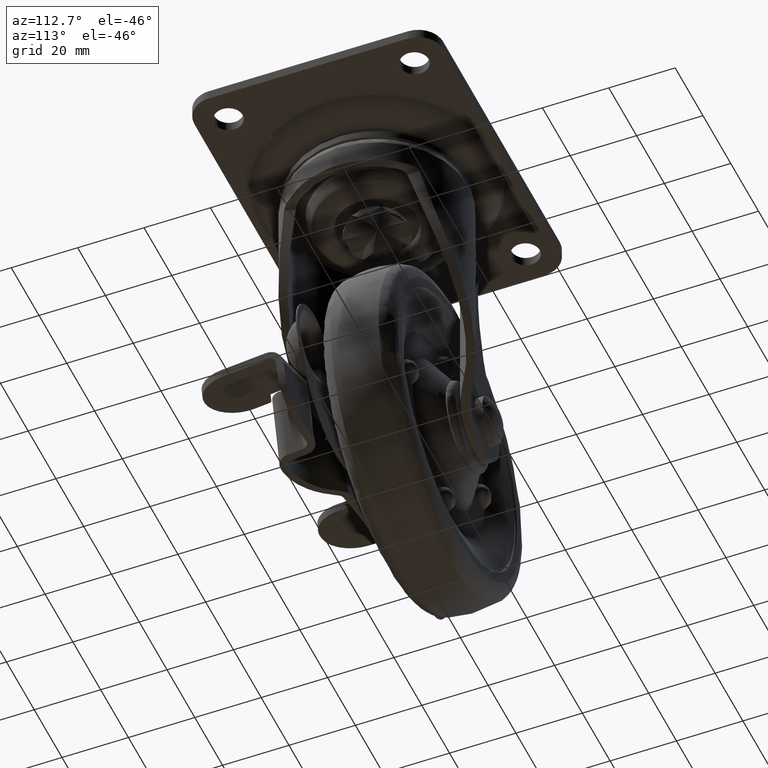
[diagram: clean part render]
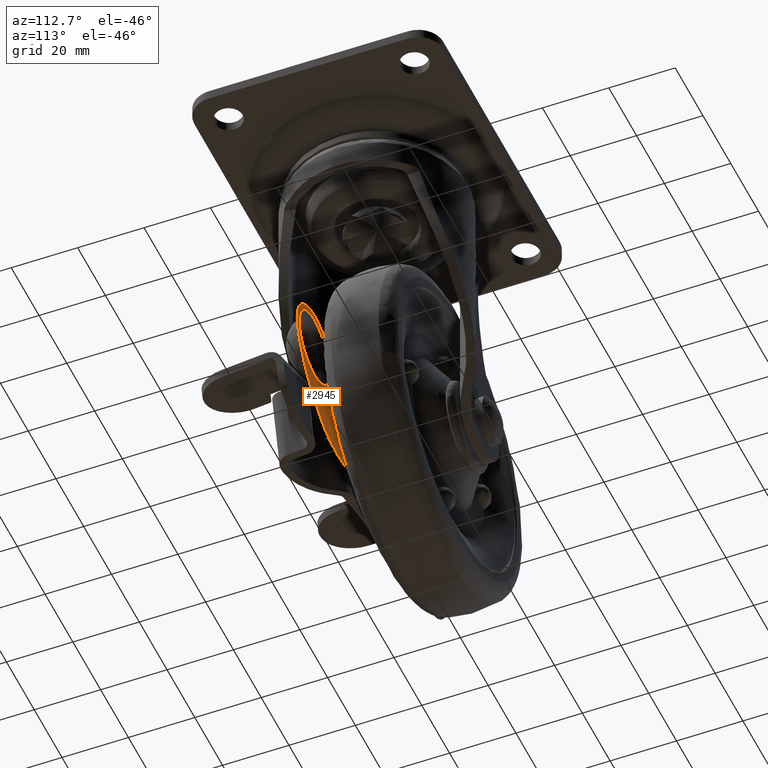
[diagram: same view with one face highlighted and labeled with its STEP entity id]
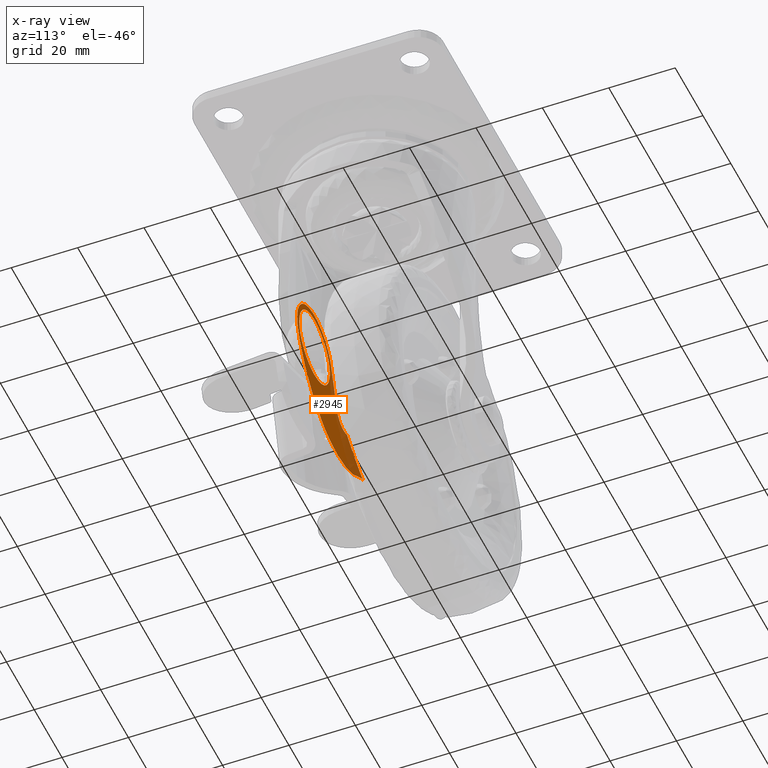
[diagram: x-ray of the same camera — body ghosted, the highlighted face saturated]
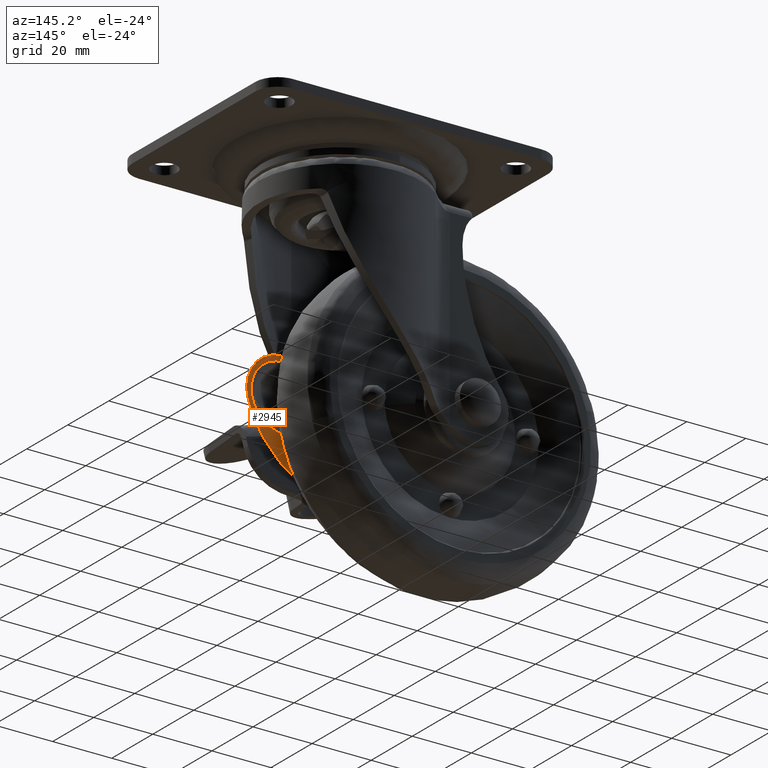
[diagram: same view with one face highlighted and labeled with its STEP entity id]
A machine part, auxiliary view. The second image highlights one B-rep face of the part: STEP entity #2945.
The next image is the same camera in x-ray: the body ghosted, the highlighted face saturated — about 28% of this face is hidden behind the body in this view.
A second angle (auxiliary view) of the same face is appended — the face is thin or edge-on in the first view.
In plain terms, the highlighted face is a freeform B-spline surface patch.
Its self-contained STEP definition (entity closure, byte-faithful):
#1144=CARTESIAN_POINT('',(-1.709411603005266,-15.300000000000161,-73.362410137319358));
#1145=VERTEX_POINT('',#1144);
#1146=CARTESIAN_POINT('',(8.466438999999900,-15.300000000000001,-58.184845000000102));
#1147=VERTEX_POINT('',#1146);
#1148=CARTESIAN_POINT('',(-1.709411603005267,-15.300000000000166,-73.362410137319358));
#1149=CARTESIAN_POINT('',(-2.533560449116372,-15.300000000000150,-71.354921374579988));
#1150=CARTESIAN_POINT('',(-2.533560507303578,-15.300000000000139,-69.184844797729852));
#1151=CARTESIAN_POINT('',(-2.533560802251347,-15.300000000000059,-58.184844918816871));
#1152=CARTESIAN_POINT('',(8.466438999999900,-15.300000000000001,-58.184845000000102));
#1160=(BOUNDED_CURVE()B_SPLINE_CURVE(2,(#1148,#1149,#1150,#1151,#1152),.UNSPECIFIED.,.F.,.U.)B_SPLINE_CURVE_WITH_KNOTS((3,2,3),(0.685520128603831,0.750000000000000,1.0),.UNSPECIFIED.)CURVE()GEOMETRIC_REPRESENTATION_ITEM()RATIONAL_B_SPLINE_CURVE((0.887882218822083,0.924457131672395,1.0,0.707106781186548,1.0))REPRESENTATION_ITEM(''));
#1161=EDGE_CURVE('',#1145,#1147,#1160,.T.);
#1163=CARTESIAN_POINT('',(18.642289603005139,-15.300000000000161,-65.007279862680818));
#1164=VERTEX_POINT('',#1163);
#1165=CARTESIAN_POINT('',(8.466438999999900,-15.300000000000001,-58.184845000000102));
#1166=CARTESIAN_POINT('',(15.841426743195910,-15.300000000000074,-58.184845121087115));
#1167=CARTESIAN_POINT('',(18.642289603005139,-15.300000000000162,-65.007279862680832));
#1175=(BOUNDED_CURVE()B_SPLINE_CURVE(2,(#1165,#1166,#1167),.UNSPECIFIED.,.F.,.U.)B_SPLINE_CURVE_WITH_KNOTS((3,3),(0.0,0.185520128603832),.UNSPECIFIED.)CURVE()GEOMETRIC_REPRESENTATION_ITEM()RATIONAL_B_SPLINE_CURVE((1.0,0.782649649514152,0.887882218822083))REPRESENTATION_ITEM(''));
#1176=EDGE_CURVE('',#1147,#1164,#1175,.T.);
#1238=CARTESIAN_POINT('',(8.466438999999900,-15.300000000000001,-80.184845000000081));
#1239=VERTEX_POINT('',#1238);
#1240=CARTESIAN_POINT('',(8.466438999999900,-15.300000000000001,-80.184845000000081));
#1241=CARTESIAN_POINT('',(1.091451256803934,-15.300000000000084,-80.184844878913069));
#1242=CARTESIAN_POINT('',(-1.709411603005267,-15.300000000000166,-73.362410137319358));
#1250=(BOUNDED_CURVE()B_SPLINE_CURVE(2,(#1240,#1241,#1242),.UNSPECIFIED.,.F.,.U.)B_SPLINE_CURVE_WITH_KNOTS((3,3),(0.500000000000000,0.685520128603831),.UNSPECIFIED.)CURVE()GEOMETRIC_REPRESENTATION_ITEM()RATIONAL_B_SPLINE_CURVE((1.0,0.782649649514153,0.887882218822083))REPRESENTATION_ITEM(''));
#1251=EDGE_CURVE('',#1239,#1145,#1250,.T.);
#1257=CARTESIAN_POINT('',(18.642289603005135,-15.300000000000171,-65.007279862680818));
#1258=CARTESIAN_POINT('',(19.466438449116229,-15.300000000000153,-67.014768625420203));
#1259=CARTESIAN_POINT('',(19.466438507303430,-15.300000000000139,-69.184845202270310));
#1260=CARTESIAN_POINT('',(19.466438802251158,-15.300000000000059,-80.184845081183283));
#1261=CARTESIAN_POINT('',(8.466438999999900,-15.300000000000001,-80.184845000000081));
#1269=(BOUNDED_CURVE()B_SPLINE_CURVE(2,(#1257,#1258,#1259,#1260,#1261),.UNSPECIFIED.,.F.,.U.)B_SPLINE_CURVE_WITH_KNOTS((3,2,3),(0.185520128603832,0.250000000000000,0.500000000000000),.UNSPECIFIED.)CURVE()GEOMETRIC_REPRESENTATION_ITEM()RATIONAL_B_SPLINE_CURVE((0.887882218822084,0.924457131672395,1.0,0.707106781186548,1.0))REPRESENTATION_ITEM(''));
#1270=EDGE_CURVE('',#1164,#1239,#1269,.T.);
#1871=CARTESIAN_POINT('',(-14.817912828488399,-15.300000000000001,-81.898917731192512));
#1872=VERTEX_POINT('',#1871);
#1873=CARTESIAN_POINT('',(-7.744955596167240,-15.300000000000001,-78.949488484495305));
#1874=VERTEX_POINT('',#1873);
#1875=CARTESIAN_POINT('',(-14.817912828488399,-15.300000000000001,-81.898917731192512));
#1876=CARTESIAN_POINT('',(-14.515114000074609,-15.299999999999990,-82.055853995321968));
#1877=CARTESIAN_POINT('',(-13.898491608327840,-15.300000000000029,-82.299002766881884));
#1878=CARTESIAN_POINT('',(-12.954309716617241,-15.299999999999930,-82.468795536424139));
#1879=CARTESIAN_POINT('',(-12.086900802657420,-15.300000000000120,-82.463318959884958));
#1880=CARTESIAN_POINT('',(-11.232944485777461,-15.299999999999960,-82.316758881617190));
#1881=CARTESIAN_POINT('',(-10.307139063757900,-15.299999999999990,-81.988825843741623));
#1882=CARTESIAN_POINT('',(-9.413620066839647,-15.300000000000029,-81.430152199620679));
#1883=CARTESIAN_POINT('',(-8.631940149107081,-15.299999999999971,-80.661332395522649));
#1884=CARTESIAN_POINT('',(-8.085469738145621,-15.300000000000029,-79.843591482971888));
#1885=CARTESIAN_POINT('',(-7.833028839495156,-15.300000000000081,-79.231632900424884));
#1886=CARTESIAN_POINT('',(-7.744955596167240,-15.300000000000001,-78.949488484495305));
#1887=B_SPLINE_CURVE_WITH_KNOTS('',3,(#1875,#1876,#1877,#1878,#1879,#1880,#1881,#1882,#1883,#1884,#1885,#1886),.UNSPECIFIED.,.F.,.U.,(4,1,1,1,1,1,1,1,1,4),(0.000000227018388,1.023152920006329,1.978146247702276,2.864906294735683,3.615240187924785,4.570183153187559,5.797997752128586,6.752983424697264,7.844400209190149,8.731126131894623),.UNSPECIFIED.);
#1888=EDGE_CURVE('',#1872,#1874,#1887,.T.);
#1978=CARTESIAN_POINT('',(-23.872752208038751,-15.300000000000001,-90.242676862733902));
#1979=VERTEX_POINT('',#1978);
#1987=CARTESIAN_POINT('',(3.654842872924255,-15.300000000000001,-93.350422808936102));
#1988=VERTEX_POINT('',#1987);
#1989=CARTESIAN_POINT('',(-23.872752208038751,-15.300000000000001,-90.242676862733902));
#1990=CARTESIAN_POINT('',(-11.207092813357916,-15.300000000000004,-101.523573860505380));
#1991=CARTESIAN_POINT('',(3.654842872924255,-15.300000000000001,-93.350422808936102));
#1999=(BOUNDED_CURVE()B_SPLINE_CURVE(2,(#1989,#1990,#1991),.UNSPECIFIED.,.F.,.U.)CURVE()GEOMETRIC_REPRESENTATION_ITEM()QUASI_UNIFORM_CURVE()RATIONAL_B_SPLINE_CURVE((1.0,0.816648993546892,1.0))REPRESENTATION_ITEM(''));
#2000=EDGE_CURVE('',#1979,#1988,#1999,.T.);
#2040=CARTESIAN_POINT('',(19.066549042520251,-15.300000000000001,-76.503719789376802));
#2041=VERTEX_POINT('',#2040);
#2042=CARTESIAN_POINT('',(3.654842872924287,-15.300000000000001,-93.350422808936187));
#2043=CARTESIAN_POINT('',(14.218234683915039,-15.300000000000004,-87.541205777884684));
#2044=CARTESIAN_POINT('',(19.066548468206079,-15.300000000000001,-76.503719537104189));
#2052=(BOUNDED_CURVE()B_SPLINE_CURVE(2,(#2042,#2043,#2044),.UNSPECIFIED.,.F.,.U.)CURVE()GEOMETRIC_REPRESENTATION_ITEM()QUASI_UNIFORM_CURVE()RATIONAL_B_SPLINE_CURVE((1.0,0.946991830097565,1.0))REPRESENTATION_ITEM(''));
#2053=EDGE_CURVE('',#1988,#2041,#2052,.T.);
#2093=CARTESIAN_POINT('',(20.633373239731050,-15.300000000000001,-71.844222312507597));
#2094=VERTEX_POINT('',#2093);
#2095=CARTESIAN_POINT('',(19.066549042520251,-15.300000000000001,-76.503719789376802));
#2096=CARTESIAN_POINT('',(20.059029901510478,-15.300000000000002,-74.244273567864539));
#2097=CARTESIAN_POINT('',(20.633373239731050,-15.300000000000001,-71.844222312507597));
#2105=(BOUNDED_CURVE()B_SPLINE_CURVE(2,(#2095,#2096,#2097),.UNSPECIFIED.,.F.,.U.)CURVE()GEOMETRIC_REPRESENTATION_ITEM()QUASI_UNIFORM_CURVE()RATIONAL_B_SPLINE_CURVE((1.0,0.995997634098525,1.0))REPRESENTATION_ITEM(''));
#2106=EDGE_CURVE('',#2041,#2094,#2105,.T.);
#2150=CARTESIAN_POINT('',(-3.455389813245250,-15.300000000000001,-65.209837796884187));
#2151=VERTEX_POINT('',#2150);
#2152=CARTESIAN_POINT('',(20.633373239731050,-15.300000000000001,-71.844222312507597));
#2153=CARTESIAN_POINT('',(20.843244072530840,-15.300000000000020,-70.968407232916562));
#2154=CARTESIAN_POINT('',(21.072442057432269,-15.299999999999979,-69.171175437240393));
#2155=CARTESIAN_POINT('',(20.826051706004741,-15.300000000000010,-66.414135048270822));
#2156=CARTESIAN_POINT('',(20.085394847827050,-15.300000000000029,-64.113033636691327));
#2157=CARTESIAN_POINT('',(18.996738164941750,-15.299999999999930,-62.079423961870212));
#2158=CARTESIAN_POINT('',(17.896473584247008,-15.300000000000161,-60.642780889427513));
#2159=CARTESIAN_POINT('',(16.561644531924209,-15.299999999999590,-59.356060195096163));
#2160=CARTESIAN_POINT('',(15.114236266812970,-15.300000000000169,-58.276026214044911));
#2161=CARTESIAN_POINT('',(13.419951209553970,-15.300000000000200,-57.396365524581540));
#2162=CARTESIAN_POINT('',(11.470229711244830,-15.299999999999409,-56.744227648796063));
#2163=CARTESIAN_POINT('',(9.637249884601893,-15.300000000000271,-56.435825403198152));
#2164=CARTESIAN_POINT('',(7.681739756334256,-15.300000000000081,-56.415219990122587));
#2165=CARTESIAN_POINT('',(5.542809494543914,-15.299999999999470,-56.702304071023342));
#2166=CARTESIAN_POINT('',(3.538887298337244,-15.300000000001130,-57.379114110063817));
#2167=CARTESIAN_POINT('',(1.427080091576943,-15.299999999999400,-58.532137688960752));
#2168=CARTESIAN_POINT('',(-0.225667745159356,-15.300000000000150,-59.852093145925757));
#2169=CARTESIAN_POINT('',(-1.558613171861516,-15.300000000000130,-61.419734178034822));
#2170=CARTESIAN_POINT('',(-2.644703537561951,-15.299999999999519,-63.104277222649252));
#2171=CARTESIAN_POINT('',(-3.187280985637682,-15.300000000001139,-64.350044509515811));
#2172=CARTESIAN_POINT('',(-3.455389813245250,-15.300000000000001,-65.209837796884187));
#2173=B_SPLINE_CURVE_WITH_KNOTS('',3,(#2152,#2153,#2154,#2155,#2156,#2157,#2158,#2159,#2160,#2161,#2162,#2163,#2164,#2165,#2166,#2167,#2168,#2169,#2170,#2171,#2172),.UNSPECIFIED.,.F.,.U.,(4,1,1,1,1,1,1,1,1,1,1,1,1,1,1,1,1,1,4),(0.000000031852316,2.701820944464373,5.403766863599699,8.255778840101460,9.906956142034385,12.308665528734659,13.659593723764051,15.460913955513250,17.712507891755301,19.363571308178422,21.615144699058160,23.266265552334641,25.217673341169650,28.069689449143059,29.570753311378159,32.422751139508883,34.374176870614100,35.725116515624137,38.426953483084681),.UNSPECIFIED.);
#2174=EDGE_CURVE('',#2094,#2151,#2173,.T.);
#2221=CARTESIAN_POINT('',(-7.744955596167240,-15.300000000000001,-78.949488484495305));
#2222=CARTESIAN_POINT('',(-3.455389813245250,-15.300000000000001,-65.209837796884187));
#2223=QUASI_UNIFORM_CURVE('',1,(#2221,#2222),.UNSPECIFIED.,.F.,.U.);
#2224=EDGE_CURVE('',#1874,#2151,#2223,.T.);
#2378=CARTESIAN_POINT('',(-22.349119719386749,-15.300000000000001,-86.787670594376294));
#2379=VERTEX_POINT('',#2378);
#2393=CARTESIAN_POINT('',(-24.659730753565199,-15.300000000000001,-88.131701075952606));
#2394=VERTEX_POINT('',#2393);
#2395=CARTESIAN_POINT('',(-24.659730753565199,-15.300000000000001,-88.131701075952606));
#2396=CARTESIAN_POINT('',(-23.495529933248189,-15.300000000000004,-87.474978334904634));
#2397=CARTESIAN_POINT('',(-22.349119719386788,-15.300000000000001,-86.787670594376280));
#2405=(BOUNDED_CURVE()B_SPLINE_CURVE(2,(#2395,#2396,#2397),.UNSPECIFIED.,.F.,.U.)CURVE()GEOMETRIC_REPRESENTATION_ITEM()QUASI_UNIFORM_CURVE()RATIONAL_B_SPLINE_CURVE((1.0,0.999912402124680,1.0))REPRESENTATION_ITEM(''));
#2406=EDGE_CURVE('',#2394,#2379,#2405,.T.);
#2499=CARTESIAN_POINT('',(-18.463873346645649,-15.300000000000001,-84.431003303013014));
#2500=VERTEX_POINT('',#2499);
#2514=CARTESIAN_POINT('',(-22.349119719386749,-15.300000000000001,-86.787670594376294));
#2515=CARTESIAN_POINT('',(-22.024335610446240,-15.300000000000001,-86.592952657135029));
#2516=CARTESIAN_POINT('',(-21.698632771057429,-15.300000000000001,-86.399749356327547));
#2517=CARTESIAN_POINT('',(-21.046514140212029,-15.300000000000001,-86.014518141007187));
#2518=CARTESIAN_POINT('',(-20.720121341498871,-15.300000000000001,-85.822452320221601));
#2519=CARTESIAN_POINT('',(-19.743498720131750,-15.300000000000001,-85.242041359124499));
#2520=CARTESIAN_POINT('',(-19.095765999196271,-15.300000000000001,-84.849579449581370));
#2521=CARTESIAN_POINT('',(-18.463873346645649,-15.300000000000001,-84.431003303013014));
#2522=B_SPLINE_CURVE_WITH_KNOTS('',3,(#2514,#2515,#2516,#2517,#2518,#2519,#2520,#2521),.UNSPECIFIED.,.F.,.U.,(4,2,2,4),(0.0,0.250000000000000,0.499999999999999,1.0),.UNSPECIFIED.);
#2523=EDGE_CURVE('',#2379,#2500,#2522,.T.);
#2562=CARTESIAN_POINT('',(-18.463873346645730,-15.300000000000001,-84.431003303012929));
#2563=CARTESIAN_POINT('',(-16.613080725430212,-15.299999999999995,-83.205007652711203));
#2564=CARTESIAN_POINT('',(-14.817912828488479,-15.300000000000001,-81.898917731192455));
#2572=(BOUNDED_CURVE()B_SPLINE_CURVE(2,(#2562,#2563,#2564),.UNSPECIFIED.,.F.,.U.)CURVE()GEOMETRIC_REPRESENTATION_ITEM()QUASI_UNIFORM_CURVE()RATIONAL_B_SPLINE_CURVE((1.0,0.999758791929541,1.0))REPRESENTATION_ITEM(''));
#2573=EDGE_CURVE('',#2500,#1872,#2572,.T.);
#2895=CARTESIAN_POINT('',(-28.866213016870589,-15.300000000000001,-54.450883836064783));
#2896=CARTESIAN_POINT('',(23.342330448904800,-15.300000000000001,-54.450883836064783));
#2897=CARTESIAN_POINT('',(-28.866213016870589,-15.300000000000001,-98.311178963025867));
#2898=CARTESIAN_POINT('',(23.342330448904800,-15.300000000000001,-98.311178963025867));
#2899=B_SPLINE_SURFACE_WITH_KNOTS('',1,1,((#2895,#2897),(#2896,#2898)),.UNSPECIFIED.,.F.,.F.,.U.,(2,2),(2,2),(0.0,52.208543465775392),(0.0,43.860295126961091),.UNSPECIFIED.);
#2900=ORIENTED_EDGE('',*,*,#2523,.T.);
#2901=ORIENTED_EDGE('',*,*,#2573,.T.);
#2902=ORIENTED_EDGE('',*,*,#1888,.T.);
#2903=ORIENTED_EDGE('',*,*,#2224,.T.);
#2904=ORIENTED_EDGE('',*,*,#2174,.F.);
#2905=ORIENTED_EDGE('',*,*,#2106,.F.);
#2906=ORIENTED_EDGE('',*,*,#2053,.F.);
#2907=ORIENTED_EDGE('',*,*,#2000,.F.);
#2908=CARTESIAN_POINT('',(-26.495255120143050,-15.300000000000001,-89.026094466109896));
#2909=VERTEX_POINT('',#2908);
#2910=CARTESIAN_POINT('',(-23.872752208038740,-15.300000000000001,-90.242676862733902));
#2911=CARTESIAN_POINT('',(-25.000305873372103,-15.300000000000001,-89.238400984350903));
#2912=CARTESIAN_POINT('',(-26.495255120143050,-15.300000000000001,-89.026094466109896));
#2920=(BOUNDED_CURVE()B_SPLINE_CURVE(2,(#2910,#2911,#2912),.UNSPECIFIED.,.F.,.U.)CURVE()GEOMETRIC_REPRESENTATION_ITEM()QUASI_UNIFORM_CURVE()RATIONAL_B_SPLINE_CURVE((1.0,0.957300400857688,1.0))REPRESENTATION_ITEM(''));
#2921=EDGE_CURVE('',#1979,#2909,#2920,.T.);
#2922=ORIENTED_EDGE('',*,*,#2921,.T.);
#2923=CARTESIAN_POINT('',(-26.495255120143071,-15.300000000000001,-89.026094466109868));
#2924=CARTESIAN_POINT('',(-25.550543211676224,-15.299999999999997,-88.634205511205792));
#2925=CARTESIAN_POINT('',(-24.659730753565238,-15.300000000000001,-88.131701075952563));
#2933=(BOUNDED_CURVE()B_SPLINE_CURVE(2,(#2923,#2924,#2925),.UNSPECIFIED.,.F.,.U.)CURVE()GEOMETRIC_REPRESENTATION_ITEM()QUASI_UNIFORM_CURVE()RATIONAL_B_SPLINE_CURVE((1.0,0.998189074621182,1.0))REPRESENTATION_ITEM(''));
#2934=EDGE_CURVE('',#2909,#2394,#2933,.T.);
#2935=ORIENTED_EDGE('',*,*,#2934,.T.);
#2936=ORIENTED_EDGE('',*,*,#2406,.T.);
#2937=EDGE_LOOP('',(#2900,#2901,#2902,#2903,#2904,#2905,#2906,#2907,#2922,#2935,#2936));
#2938=FACE_OUTER_BOUND('',#2937,.T.);
#2939=ORIENTED_EDGE('',*,*,#1176,.F.);
#2940=ORIENTED_EDGE('',*,*,#1161,.F.);
#2941=ORIENTED_EDGE('',*,*,#1251,.F.);
#2942=ORIENTED_EDGE('',*,*,#1270,.F.);
#2943=EDGE_LOOP('',(#2939,#2940,#2941,#2942));
#2944=FACE_BOUND('',#2943,.T.);
#2945=ADVANCED_FACE('',(#2938,#2944),#2899,.T.);